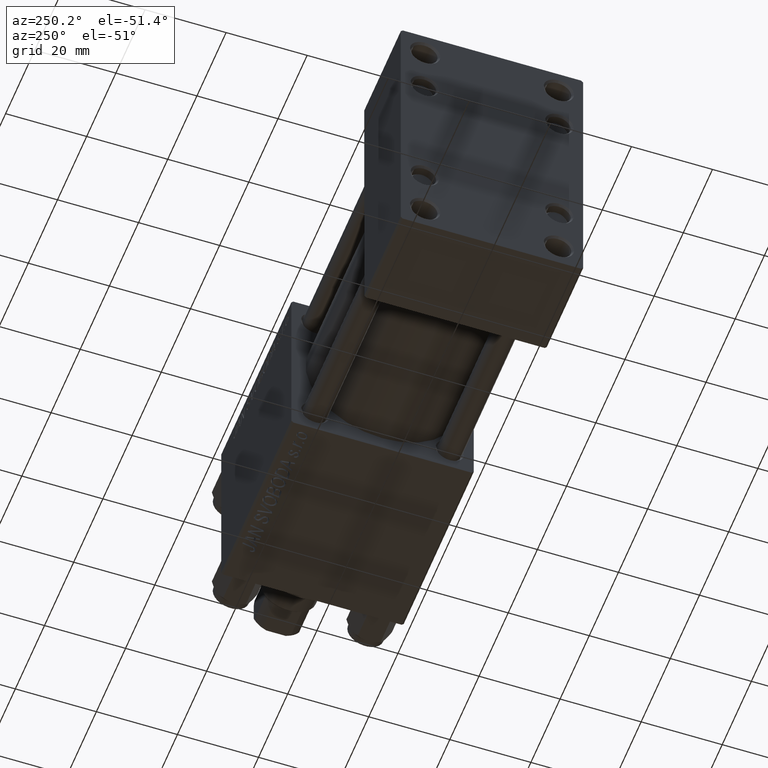
[diagram: clean part render]
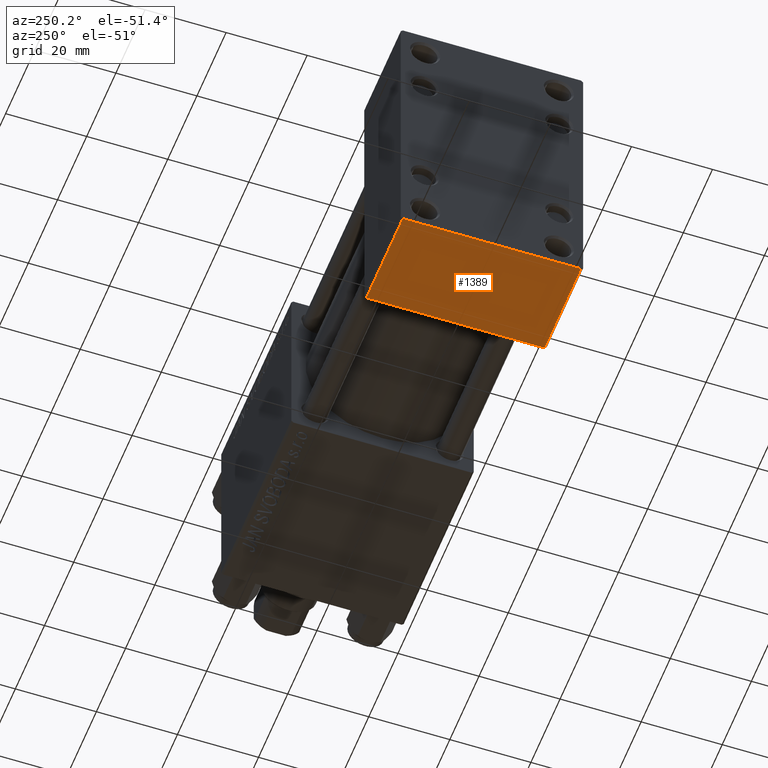
[diagram: same view with one face highlighted and labeled with its STEP entity id]
A machine part, auxiliary view. The second image highlights one B-rep face of the part: STEP entity #1389.
In plain terms, the highlighted planar face has unit normal (0, 0, -1).
Its self-contained STEP definition (entity closure, byte-faithful):
#1389 = ADVANCED_FACE ( 'NONE', ( #45731 ), #38170, .T. ) ;
#2204 = CARTESIAN_POINT ( 'NONE',  ( 25.00000000000000000, 22.50000000000000355, -34.99999999999999289 ) ) ;
#3278 = LINE ( 'NONE', #29835, #32039 ) ;
#5934 = LINE ( 'NONE', #9222, #6677 ) ;
#6395 = LINE ( 'NONE', #33704, #44519 ) ;
#6677 = VECTOR ( 'NONE', #8983, 1000.000000000000000 ) ;
#7049 = VERTEX_POINT ( 'NONE', #25452 ) ;
#8732 = EDGE_CURVE ( 'NONE', #39634, #34385, #5934, .T. ) ;
#8983 = DIRECTION ( 'NONE',  ( 1.000000000000000000, 0.000000000000000000, 0.000000000000000000 ) ) ;
#9222 = CARTESIAN_POINT ( 'NONE',  ( 25.00000000000000000, 21.99999999999999645, -34.99999999999999289 ) ) ;
#10986 = ORIENTED_EDGE ( 'NONE', *, *, #11820, .T. ) ;
#11620 = VECTOR ( 'NONE', #32312, 1000.000000000000000 ) ;
#11820 = EDGE_CURVE ( 'NONE', #34385, #7049, #33058, .T. ) ;
#14050 = CARTESIAN_POINT ( 'NONE',  ( 25.00000000000000000, 21.99999999999999645, -34.99999999999999289 ) ) ;
#14962 = DIRECTION ( 'NONE',  ( 0.000000000000000000, -1.000000000000000000, -1.541976423090495387E-16 ) ) ;
#17060 = EDGE_LOOP ( 'NONE', ( #38903, #37387, #10986, #45523 ) ) ;
#17608 = EDGE_CURVE ( 'NONE', #7049, #29326, #3278, .T. ) ;
#22982 = DIRECTION ( 'NONE',  ( 0.000000000000000000, 1.541976423090495387E-16, -1.000000000000000000 ) ) ;
#25452 = CARTESIAN_POINT ( 'NONE',  ( 25.00000000000000000, -21.99999999999998934, -35.00000000000000000 ) ) ;
#26496 = AXIS2_PLACEMENT_3D ( 'NONE', #30598, #22982, #34396 ) ;
#26603 = CARTESIAN_POINT ( 'NONE',  ( 0.000000000000000000, -21.99999999999998934, -35.00000000000000000 ) ) ;
#29326 = VERTEX_POINT ( 'NONE', #26603 ) ;
#29835 = CARTESIAN_POINT ( 'NONE',  ( 0.000000000000000000, -22.00000000000000355, -35.00000000000000000 ) ) ;
#30598 = CARTESIAN_POINT ( 'NONE',  ( 25.00000000000000000, 22.50000000000000355, -34.99999999999999289 ) ) ;
#32039 = VECTOR ( 'NONE', #45227, 1000.000000000000000 ) ;
#32312 = DIRECTION ( 'NONE',  ( 0.000000000000000000, -1.000000000000000000, -1.541976423090495387E-16 ) ) ;
#33058 = LINE ( 'NONE', #2204, #11620 ) ;
#33704 = CARTESIAN_POINT ( 'NONE',  ( 0.000000000000000000, 22.50000000000000355, -34.99999999999999289 ) ) ;
#34385 = VERTEX_POINT ( 'NONE', #14050 ) ;
#34396 = DIRECTION ( 'NONE',  ( 0.000000000000000000, 1.000000000000000000, 1.541976423090495387E-16 ) ) ;
#35945 = EDGE_CURVE ( 'NONE', #39634, #29326, #6395, .T. ) ;
#36337 = CARTESIAN_POINT ( 'NONE',  ( 0.000000000000000000, 21.99999999999999645, -34.99999999999999289 ) ) ;
#37387 = ORIENTED_EDGE ( 'NONE', *, *, #8732, .T. ) ;
#38170 = PLANE ( 'NONE',  #26496 ) ;
#38903 = ORIENTED_EDGE ( 'NONE', *, *, #35945, .F. ) ;
#39634 = VERTEX_POINT ( 'NONE', #36337 ) ;
#44519 = VECTOR ( 'NONE', #14962, 1000.000000000000000 ) ;
#45227 = DIRECTION ( 'NONE',  ( -1.000000000000000000, 0.000000000000000000, 0.000000000000000000 ) ) ;
#45523 = ORIENTED_EDGE ( 'NONE', *, *, #17608, .T. ) ;
#45731 = FACE_OUTER_BOUND ( 'NONE', #17060, .T. ) ;